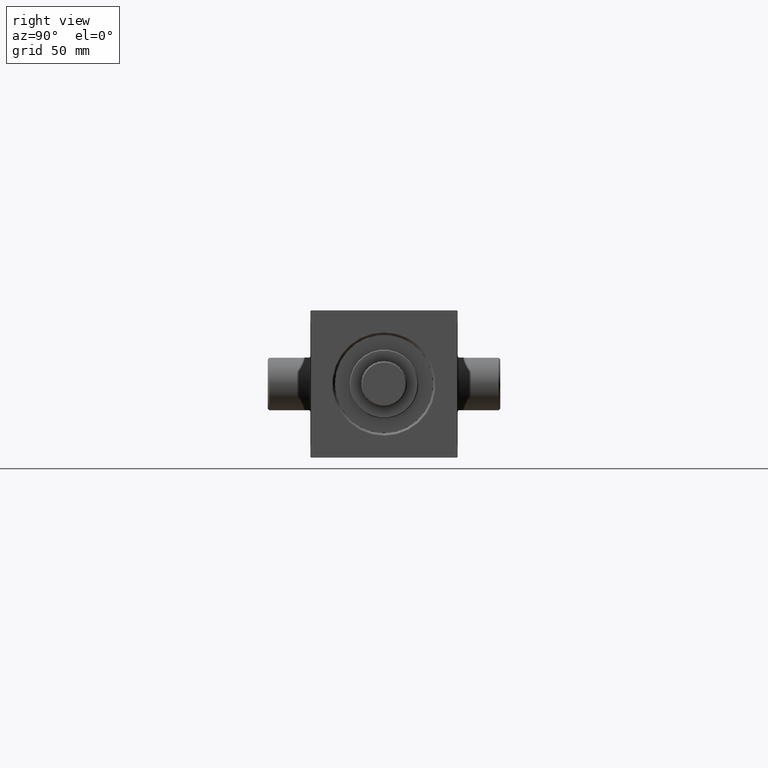
[diagram: clean part render]
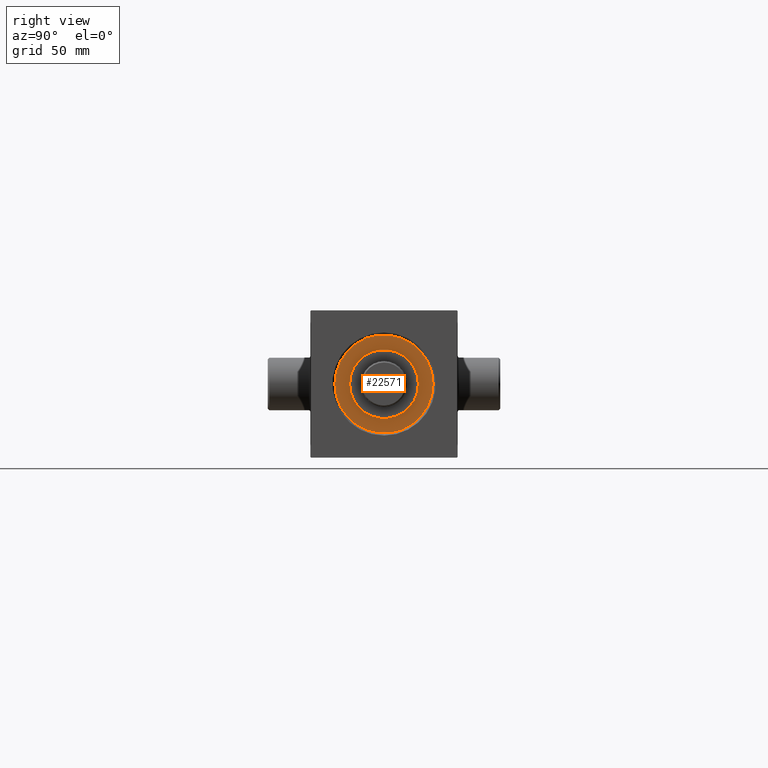
[diagram: same view with one face highlighted and labeled with its STEP entity id]
A machine part, right view. The second image highlights one B-rep face of the part: STEP entity #22571.
In plain terms, the highlighted planar face has unit normal (1, 0, 0).
Its self-contained STEP definition (entity closure, byte-faithful):
#379 = EDGE_CURVE ( 'NONE', #35331, #34542, #27265, .T. ) ;
#1447 = FACE_OUTER_BOUND ( 'NONE', #46608, .T. ) ;
#1608 = DIRECTION ( 'NONE',  ( 1.000000000000000000, 0.000000000000000000, 0.000000000000000000 ) ) ;
#1677 = DIRECTION ( 'NONE',  ( 0.000000000000000000, 0.000000000000000000, 1.000000000000000000 ) ) ;
#2006 = EDGE_LOOP ( 'NONE', ( #28705, #17903 ) ) ;
#5151 = CARTESIAN_POINT ( 'NONE',  ( 0.000000000000000000, 0.000000000000000000, 26.69999999999999929 ) ) ;
#6085 = EDGE_CURVE ( 'NONE', #34542, #35331, #9323, .T. ) ;
#6272 = AXIS2_PLACEMENT_3D ( 'NONE', #14117, #22131, #21436 ) ;
#9323 = CIRCLE ( 'NONE', #45527, 21.00000000000000000 ) ;
#13366 = VERTEX_POINT ( 'NONE', #18388 ) ;
#14117 = CARTESIAN_POINT ( 'NONE',  ( 0.000000000000000000, 0.000000000000000000, 26.69999999999999929 ) ) ;
#14442 = AXIS2_PLACEMENT_3D ( 'NONE', #5151, #33999, #1608 ) ;
#15646 = PLANE ( 'NONE',  #43638 ) ;
#15760 = CARTESIAN_POINT ( 'NONE',  ( 0.000000000000000000, 0.000000000000000000, 26.69999999999999929 ) ) ;
#15987 = DIRECTION ( 'NONE',  ( 1.000000000000000000, 0.000000000000000000, 0.000000000000000000 ) ) ;
#16852 = CIRCLE ( 'NONE', #6272, 30.00000000000000000 ) ;
#17865 = CARTESIAN_POINT ( 'NONE',  ( 21.00000000000000000, 2.571758278209441661E-15, 26.69999999999999929 ) ) ;
#17903 = ORIENTED_EDGE ( 'NONE', *, *, #6085, .F. ) ;
#18388 = CARTESIAN_POINT ( 'NONE',  ( -30.00000000000000000, 0.000000000000000000, 26.69999999999999929 ) ) ;
#19956 = CIRCLE ( 'NONE', #30500, 30.00000000000000000 ) ;
#21436 = DIRECTION ( 'NONE',  ( 1.000000000000000000, 0.000000000000000000, 0.000000000000000000 ) ) ;
#21482 = ORIENTED_EDGE ( 'NONE', *, *, #30360, .T. ) ;
#22131 = DIRECTION ( 'NONE',  ( 0.000000000000000000, 0.000000000000000000, 1.000000000000000000 ) ) ;
#22571 = ADVANCED_FACE ( 'NONE', ( #22734, #1447 ), #15646, .T. ) ;
#22734 = FACE_BOUND ( 'NONE', #2006, .T. ) ;
#25867 = DIRECTION ( 'NONE',  ( 0.000000000000000000, 0.000000000000000000, 1.000000000000000000 ) ) ;
#26871 = DIRECTION ( 'NONE',  ( 0.000000000000000000, 0.000000000000000000, 1.000000000000000000 ) ) ;
#27219 = DIRECTION ( 'NONE',  ( 1.000000000000000000, 0.000000000000000000, -0.000000000000000000 ) ) ;
#27265 = CIRCLE ( 'NONE', #14442, 21.00000000000000000 ) ;
#28705 = ORIENTED_EDGE ( 'NONE', *, *, #379, .F. ) ;
#30112 = DIRECTION ( 'NONE',  ( 1.000000000000000000, 0.000000000000000000, 0.000000000000000000 ) ) ;
#30360 = EDGE_CURVE ( 'NONE', #44719, #13366, #16852, .T. ) ;
#30500 = AXIS2_PLACEMENT_3D ( 'NONE', #15760, #26871, #15987 ) ;
#30889 = CARTESIAN_POINT ( 'NONE',  ( -21.00000000000000000, 0.000000000000000000, 26.69999999999999929 ) ) ;
#33999 = DIRECTION ( 'NONE',  ( 0.000000000000000000, 0.000000000000000000, 1.000000000000000000 ) ) ;
#34542 = VERTEX_POINT ( 'NONE', #17865 ) ;
#35331 = VERTEX_POINT ( 'NONE', #30889 ) ;
#36272 = CARTESIAN_POINT ( 'NONE',  ( 0.000000000000000000, 0.000000000000000000, 26.69999999999999929 ) ) ;
#37151 = CARTESIAN_POINT ( 'NONE',  ( 0.000000000000000000, 0.000000000000000000, 26.69999999999999929 ) ) ;
#37347 = EDGE_CURVE ( 'NONE', #13366, #44719, #19956, .T. ) ;
#38554 = CARTESIAN_POINT ( 'NONE',  ( 30.00000000000000000, 3.673940397442059178E-15, 26.69999999999999929 ) ) ;
#43638 = AXIS2_PLACEMENT_3D ( 'NONE', #37151, #1677, #27219 ) ;
#44719 = VERTEX_POINT ( 'NONE', #38554 ) ;
#45527 = AXIS2_PLACEMENT_3D ( 'NONE', #36272, #25867, #30112 ) ;
#45777 = ORIENTED_EDGE ( 'NONE', *, *, #37347, .T. ) ;
#46608 = EDGE_LOOP ( 'NONE', ( #45777, #21482 ) ) ;